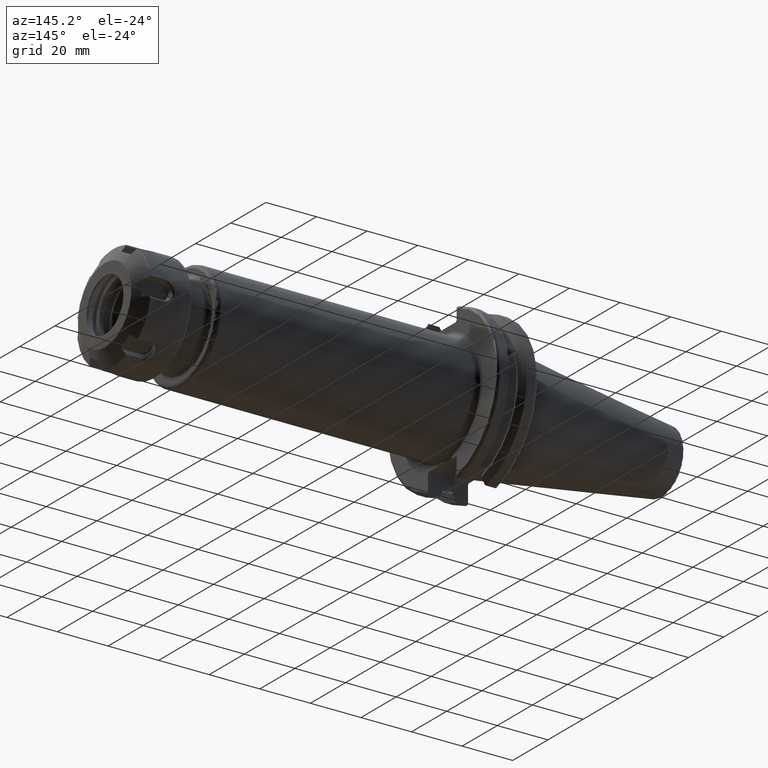
[diagram: clean part render]
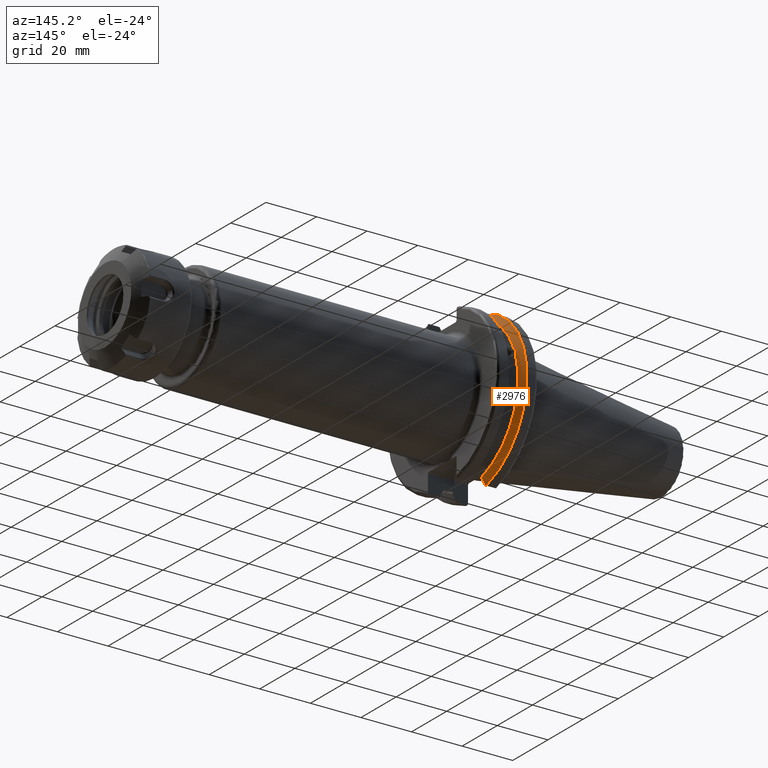
[diagram: same view with one face highlighted and labeled with its STEP entity id]
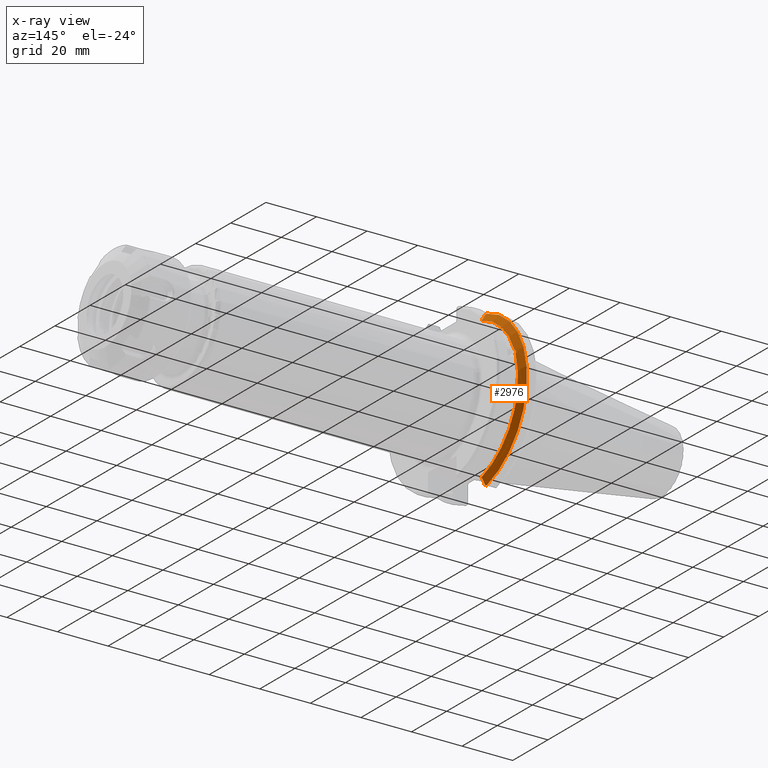
[diagram: x-ray of the same camera — body ghosted, the highlighted face saturated]
A machine part, auxiliary view. The second image highlights one B-rep face of the part: STEP entity #2976.
The next image is the same camera in x-ray: the body ghosted, the highlighted face saturated — about 0% of this face is hidden behind the body in this view.
In plain terms, the highlighted conical surface has half-angle 60 deg.
Its self-contained STEP definition (entity closure, byte-faithful):
#123=(
BOUNDED_CURVE()
B_SPLINE_CURVE(2,(#4849,#4850,#4851),.UNSPECIFIED.,.F.,.F.)
B_SPLINE_CURVE_WITH_KNOTS((3,3),(0.,0.276549142796606),.UNSPECIFIED.)
CURVE()
GEOMETRIC_REPRESENTATION_ITEM()
RATIONAL_B_SPLINE_CURVE((1.,1.00095203903674,1.00031614444931))
REPRESENTATION_ITEM('')
);
#128=(
BOUNDED_CURVE()
B_SPLINE_CURVE(2,(#5012,#5013,#5014),.UNSPECIFIED.,.F.,.F.)
B_SPLINE_CURVE_WITH_KNOTS((3,3),(0.,0.0639048713675806),.UNSPECIFIED.)
CURVE()
GEOMETRIC_REPRESENTATION_ITEM()
RATIONAL_B_SPLINE_CURVE((1.,1.00028444218287,1.00047644010581))
REPRESENTATION_ITEM('')
);
#129=(
BOUNDED_CURVE()
B_SPLINE_CURVE(2,(#5043,#5044,#5045),.UNSPECIFIED.,.F.,.F.)
B_SPLINE_CURVE_WITH_KNOTS((3,3),(0.0550586467389817,0.331607789535851),
 .UNSPECIFIED.)
CURVE()
GEOMETRIC_REPRESENTATION_ITEM()
RATIONAL_B_SPLINE_CURVE((1.00031614445175,1.00095203904407,1.))
REPRESENTATION_ITEM('')
);
#130=(
BOUNDED_CURVE()
B_SPLINE_CURVE(2,(#5060,#5061,#5062),.UNSPECIFIED.,.F.,.F.)
B_SPLINE_CURVE_WITH_KNOTS((3,3),(0.329353533631191,0.393258405001025),
 .UNSPECIFIED.)
CURVE()
GEOMETRIC_REPRESENTATION_ITEM()
RATIONAL_B_SPLINE_CURVE((1.00047644010569,1.00028444218281,1.))
REPRESENTATION_ITEM('')
);
#185=B_SPLINE_CURVE_WITH_KNOTS('',3,(#4667,#4668,#4669,#4670,#4671,#4672,
#4673,#4674,#4675,#4676,#4677,#4678,#4679,#4680),.UNSPECIFIED.,.F.,.F.,
(4,2,2,2,2,2,4),(0.451995700189023,0.46454782854766,0.504528771685165,0.54450971482267,
0.584490657960176,0.624471601097681,0.637023729456318),.UNSPECIFIED.);
#473=FACE_OUTER_BOUND('',#656,.T.);
#656=EDGE_LOOP('',(#2414,#2415,#2416,#2417,#2418,#2419,#2420,#2421));
#1178=CIRCLE('',#3245,28.9593772964944);
#1201=CIRCLE('',#3301,31.75);
#1204=CIRCLE('',#3311,28.9593772964944);
#1340=VERTEX_POINT('',#4664);
#1341=VERTEX_POINT('',#4666);
#1353=VERTEX_POINT('',#4741);
#1382=VERTEX_POINT('',#4846);
#1383=VERTEX_POINT('',#4848);
#1413=VERTEX_POINT('',#5010);
#1419=VERTEX_POINT('',#5042);
#1420=VERTEX_POINT('',#5052);
#1655=EDGE_CURVE('',#1341,#1340,#185,.T.);
#1671=EDGE_CURVE('',#1341,#1353,#1178,.T.);
#1709=EDGE_CURVE('',#1383,#1382,#123,.T.);
#1755=EDGE_CURVE('',#1413,#1382,#128,.T.);
#1769=EDGE_CURVE('',#1419,#1353,#129,.T.);
#1774=EDGE_CURVE('',#1413,#1420,#1201,.T.);
#1776=EDGE_CURVE('',#1419,#1420,#130,.T.);
#1781=EDGE_CURVE('',#1383,#1340,#1204,.T.);
#2414=ORIENTED_EDGE('',*,*,#1655,.T.);
#2415=ORIENTED_EDGE('',*,*,#1781,.F.);
#2416=ORIENTED_EDGE('',*,*,#1709,.T.);
#2417=ORIENTED_EDGE('',*,*,#1755,.F.);
#2418=ORIENTED_EDGE('',*,*,#1774,.T.);
#2419=ORIENTED_EDGE('',*,*,#1776,.F.);
#2420=ORIENTED_EDGE('',*,*,#1769,.T.);
#2421=ORIENTED_EDGE('',*,*,#1671,.F.);
#2888=CONICAL_SURFACE('',#3310,30.3546886482472,1.0471975511966);
#2976=ADVANCED_FACE('',(#473),#2888,.T.);
#3245=AXIS2_PLACEMENT_3D('',#4742,#3700,#3701);
#3301=AXIS2_PLACEMENT_3D('',#5054,#3868,#3869);
#3310=AXIS2_PLACEMENT_3D('',#5072,#3889,#3890);
#3311=AXIS2_PLACEMENT_3D('',#5073,#3891,#3892);
#3700=DIRECTION('center_axis',(1.,0.,0.));
#3701=DIRECTION('ref_axis',(0.,0.,-1.));
#3868=DIRECTION('center_axis',(1.,0.,0.));
#3869=DIRECTION('ref_axis',(0.,0.,-1.));
#3889=DIRECTION('center_axis',(-1.,0.,0.));
#3890=DIRECTION('ref_axis',(0.,1.,0.));
#3891=DIRECTION('center_axis',(1.,0.,0.));
#3892=DIRECTION('ref_axis',(0.,0.,-1.));
#4664=CARTESIAN_POINT('',(9.212,27.4956274489925,9.09043478536247));
#4666=CARTESIAN_POINT('',(9.212,26.9060914640648,10.7101715919071));
#4667=CARTESIAN_POINT('Ctrl Pts',(9.212,26.9060914640648,10.7101715919071));
#4668=CARTESIAN_POINT('Ctrl Pts',(9.19787959280038,26.9406927482839,10.6893765730703));
#4669=CARTESIAN_POINT('Ctrl Pts',(9.18440701821434,26.9744191989197,10.6676007180673));
#4670=CARTESIAN_POINT('Ctrl Pts',(9.13101855884095,27.1113422433189,10.5723885976054));
#4671=CARTESIAN_POINT('Ctrl Pts',(9.09288029158246,27.2180531796526,10.4801333026531));
#4672=CARTESIAN_POINT('Ctrl Pts',(9.04068935539424,27.3968610665578,10.2639559818059));
#4673=CARTESIAN_POINT('Ctrl Pts',(9.027,27.4684373304961,10.139516340139));
#4674=CARTESIAN_POINT('Ctrl Pts',(9.027,27.559599249844,9.88905102521651));
#4675=CARTESIAN_POINT('Ctrl Pts',(9.04068935539424,27.5847569104122,9.74771639360672));
#4676=CARTESIAN_POINT('Ctrl Pts',(9.09288029158246,27.5867382255984,9.46717946402648));
#4677=CARTESIAN_POINT('Ctrl Pts',(9.13101855884095,27.5642934663232,9.32791534028656));
#4678=CARTESIAN_POINT('Ctrl Pts',(9.18440701821433,27.5206055003512,9.16696618806878));
#4679=CARTESIAN_POINT('Ctrl Pts',(9.19787959280038,27.5087667900418,9.12860597076219));
#4680=CARTESIAN_POINT('Ctrl Pts',(9.21199999999999,27.4956274489925,9.09043478536247));
#4741=CARTESIAN_POINT('',(9.212,8.19,27.7771386827498));
#4742=CARTESIAN_POINT('Origin',(9.212,0.,0.));
#4846=CARTESIAN_POINT('',(7.87958530351256,8.19,-30.1755016258903));
#4848=CARTESIAN_POINT('',(9.212,8.19,-27.7771386827498));
#4849=CARTESIAN_POINT('Ctrl Pts',(9.212,8.19,-27.7771386827498));
#4850=CARTESIAN_POINT('Ctrl Pts',(8.57336356152746,8.19,-28.9303689539641));
#4851=CARTESIAN_POINT('Ctrl Pts',(7.87958530351256,8.19,-30.1755016258903));
#5010=CARTESIAN_POINT('',(7.60083323092435,8.67204822802685,-30.5427254764662));
#5012=CARTESIAN_POINT('Ctrl Pts',(7.60083323092435,8.67204822802686,-30.5427254764662));
#5013=CARTESIAN_POINT('Ctrl Pts',(7.74189148121628,8.42917748262644,-30.357706789263));
#5014=CARTESIAN_POINT('Ctrl Pts',(7.87958530351256,8.19,-30.1755016258903));
#5042=CARTESIAN_POINT('',(7.87958530351255,8.19,30.1755016258903));
#5043=CARTESIAN_POINT('Ctrl Pts',(7.87958530351255,8.19,30.1755016258903));
#5044=CARTESIAN_POINT('Ctrl Pts',(8.57336356152574,8.19,28.9303689539672));
#5045=CARTESIAN_POINT('Ctrl Pts',(9.212,8.19,27.7771386827498));
#5052=CARTESIAN_POINT('',(7.60083323092435,8.67204822802685,30.5427254764662));
#5054=CARTESIAN_POINT('Origin',(7.60083323092435,0.,0.));
#5060=CARTESIAN_POINT('Ctrl Pts',(7.87958530351255,8.19,30.1755016258903));
#5061=CARTESIAN_POINT('Ctrl Pts',(7.74189148121158,8.42917748263468,30.3577067892692));
#5062=CARTESIAN_POINT('Ctrl Pts',(7.60083323092435,8.67204822802687,30.5427254764662));
#5072=CARTESIAN_POINT('Origin',(8.40641661546218,0.,0.));
#5073=CARTESIAN_POINT('Origin',(9.212,0.,0.));